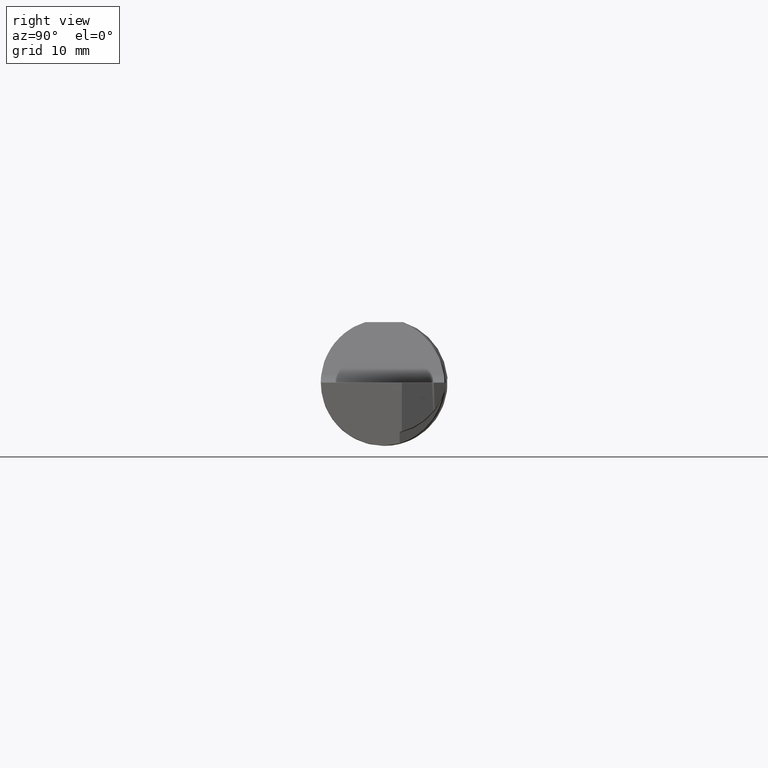
[diagram: clean part render]
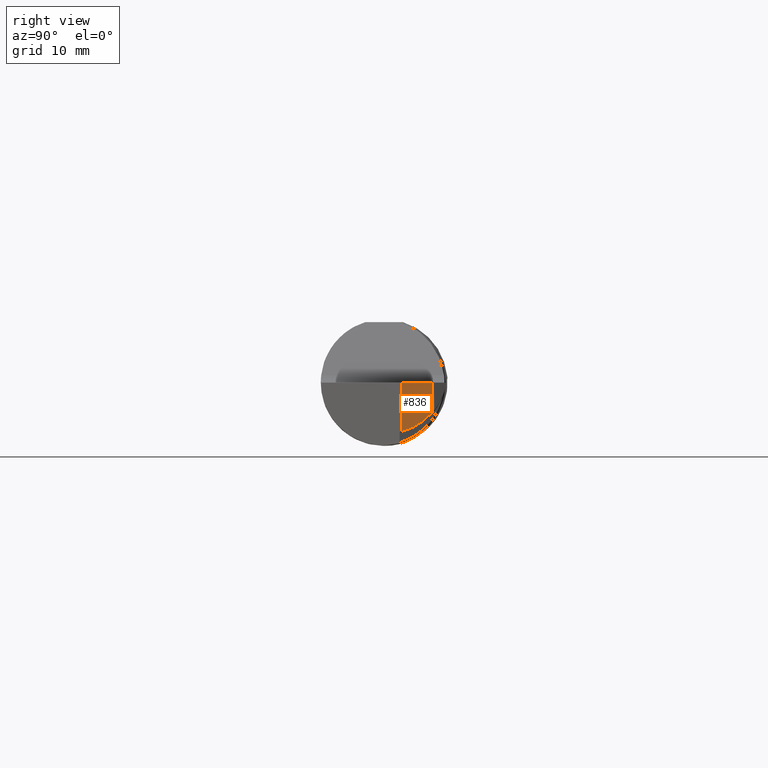
[diagram: same view with one face highlighted and labeled with its STEP entity id]
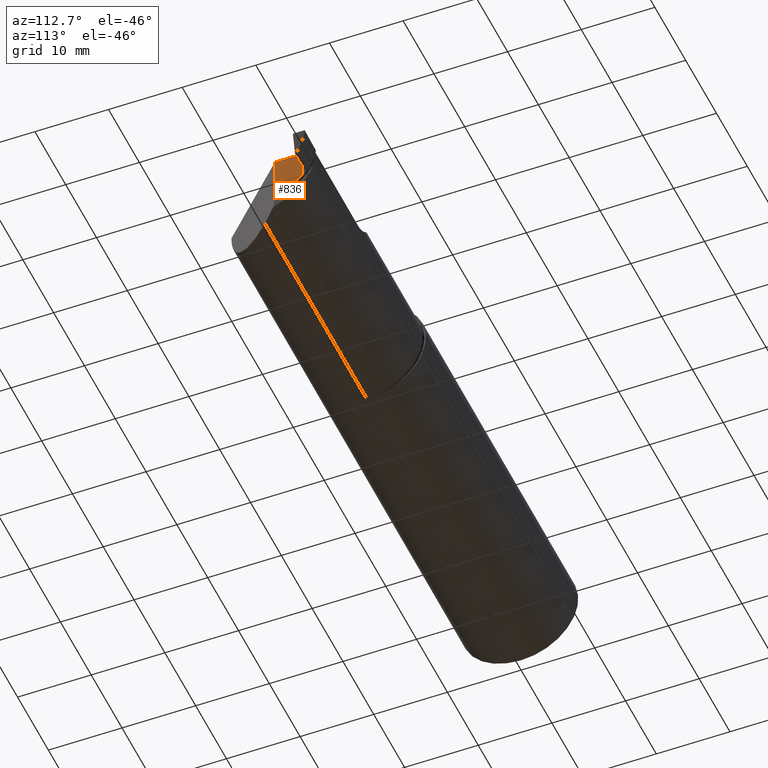
[diagram: same view with one face highlighted and labeled with its STEP entity id]
A machine part, right view. The second image highlights one B-rep face of the part: STEP entity #836.
A second angle (auxiliary view) of the same face is appended — the face is thin or edge-on in the first view.
In plain terms, the highlighted planar face has unit normal (-1, 0, -0).
Its self-contained STEP definition (entity closure, byte-faithful):
#32 = ORIENTED_EDGE ( 'NONE', *, *, #860, .F. ) ;
#62 = CARTESIAN_POINT ( 'NONE',  ( 3.354999999999999538, 0.2367041488446496589, -0.3123500000000000165 ) ) ;
#69 = PLANE ( 'NONE',  #389 ) ;
#72 = DIRECTION ( 'NONE',  ( -1.000000000000000000, 0.000000000000000000, -0.000000000000000000 ) ) ;
#183 = CARTESIAN_POINT ( 'NONE',  ( 3.354999999999999538, 0.1972929545011108676, -0.1933218207390127730 ) ) ;
#194 = DIRECTION ( 'NONE',  ( -0.000000000000000000, -0.000000000000000000, 1.000000000000000000 ) ) ;
#282 = VERTEX_POINT ( 'NONE', #676 ) ;
#303 = CARTESIAN_POINT ( 'NONE',  ( 3.354999999999999538, 0.2367041488446496589, -0.1476079950379504679 ) ) ;
#323 = EDGE_CURVE ( 'NONE', #601, #282, #378, .T. ) ;
#327 = CARTESIAN_POINT ( 'NONE',  ( 3.354999999999999538, 0.2367041488446496589, 0.000000000000000000 ) ) ;
#344 = DIRECTION ( 'NONE',  ( -0.000000000000000000, 0.000000000000000000, 1.000000000000000000 ) ) ;
#352 = CARTESIAN_POINT ( 'NONE',  ( 3.354999999999999538, 0.2367041488446496589, 0.000000000000000000 ) ) ;
#378 = LINE ( 'NONE', #327, #829 ) ;
#380 = ORIENTED_EDGE ( 'NONE', *, *, #661, .T. ) ;
#389 = AXIS2_PLACEMENT_3D ( 'NONE', #62, #72, #344 ) ;
#436 = VECTOR ( 'NONE', #820, 39.37007874015748143 ) ;
#448 = EDGE_LOOP ( 'NONE', ( #861, #380, #589, #32 ) ) ;
#453 = DIRECTION ( 'NONE',  ( 0.000000000000000000, -1.000000000000000000, 0.000000000000000000 ) ) ;
#474 = CARTESIAN_POINT ( 'NONE',  ( 3.354999999999999538, 0.08765000000000008895, -0.3123500000000000165 ) ) ;
#483 = CARTESIAN_POINT ( 'NONE',  ( 3.354999999999999538, 0.2367041488446496589, -0.1476079950379504679 ) ) ;
#538 = VERTEX_POINT ( 'NONE', #582 ) ;
#540 = LINE ( 'NONE', #474, #436 ) ;
#582 = CARTESIAN_POINT ( 'NONE',  ( 3.354999999999999538, 0.08765000000000008895, -0.2404606667469501857 ) ) ;
#589 = ORIENTED_EDGE ( 'NONE', *, *, #323, .T. ) ;
#591 = CARTESIAN_POINT ( 'NONE',  ( 3.354999999999999538, 0.08765000000000008895, -0.2404606667469501857 ) ) ;
#600 =( BOUNDED_CURVE ( )  B_SPLINE_CURVE ( 3, ( #591, #862, #183, #303 ),
 .UNSPECIFIED., .F., .T. ) 
 B_SPLINE_CURVE_WITH_KNOTS ( ( 4, 4 ),
 ( 1.825796400454383184, 2.430174673019477982 ),
 .UNSPECIFIED. ) 
 CURVE ( )  GEOMETRIC_REPRESENTATION_ITEM ( )  RATIONAL_B_SPLINE_CURVE ( ( 1.000000000000000000, 0.9697915109990966620, 0.9697915109990966620, 1.000000000000000000 ) ) 
 REPRESENTATION_ITEM ( '' )  );
#601 = VERTEX_POINT ( 'NONE', #352 ) ;
#661 = EDGE_CURVE ( 'NONE', #822, #601, #866, .T. ) ;
#676 = CARTESIAN_POINT ( 'NONE',  ( 3.354999999999999538, 0.08765000000000008895, 0.000000000000000000 ) ) ;
#732 = CARTESIAN_POINT ( 'NONE',  ( 3.354999999999999538, 0.2367041488446496589, -0.3123500000000000165 ) ) ;
#764 = FACE_OUTER_BOUND ( 'NONE', #448, .T. ) ;
#770 = VECTOR ( 'NONE', #194, 39.37007874015748143 ) ;
#773 = EDGE_CURVE ( 'NONE', #538, #822, #600, .T. ) ;
#820 = DIRECTION ( 'NONE',  ( -0.000000000000000000, -0.000000000000000000, 1.000000000000000000 ) ) ;
#822 = VERTEX_POINT ( 'NONE', #483 ) ;
#829 = VECTOR ( 'NONE', #453, 39.37007874015748143 ) ;
#836 = ADVANCED_FACE ( 'NONE', ( #764 ), #69, .F. ) ;
#860 = EDGE_CURVE ( 'NONE', #538, #282, #540, .T. ) ;
#861 = ORIENTED_EDGE ( 'NONE', *, *, #773, .T. ) ;
#862 = CARTESIAN_POINT ( 'NONE',  ( 3.354999999999999538, 0.1460605857723273615, -0.2252368150637006072 ) ) ;
#866 = LINE ( 'NONE', #732, #770 ) ;